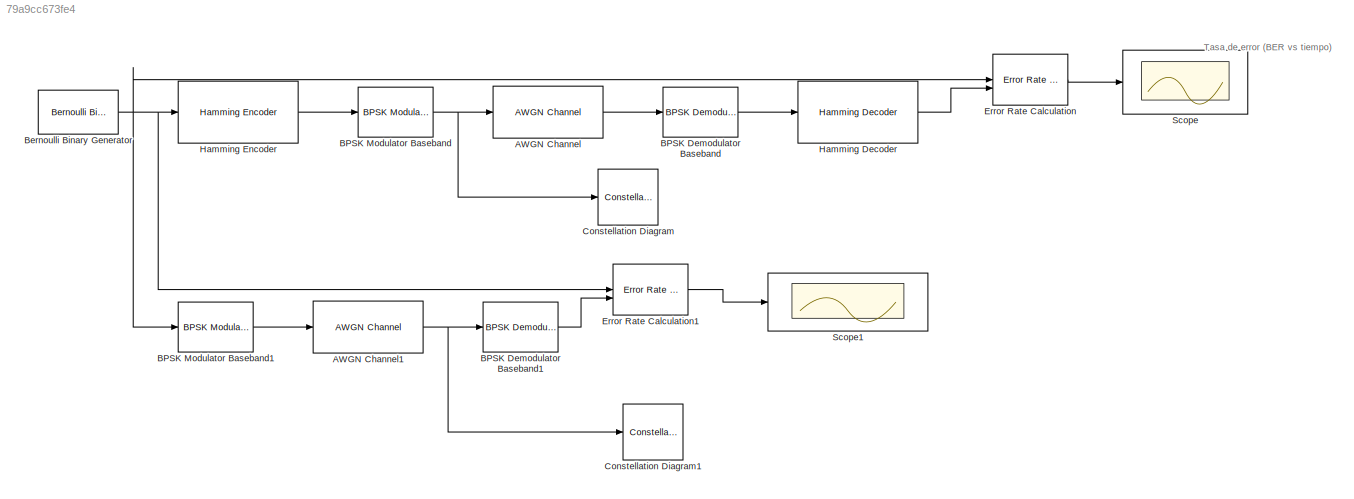
MODEL slx_79a9cc673fe4
KIND model
CONFIG AbsTol = auto
CONFIG EnableMultiTasking = off
CONFIG FixedStep = auto
CONFIG MaxStep = auto
CONFIG MinStep = auto
CONFIG RelTol = 1e-3
CONFIG SampleTimeConstraint = Unconstrained
CONFIG SolverName = VariableStepAuto
CONFIG StartTime = 0.0
CONFIG StopTime = 50
BLOCK [Reference] AWGN Channel  REF=commchan3/AWGN
Channel
  SourceBlock = commchan3/AWGN\nChannel
  SourceType = AWGN Channel
BLOCK [Reference] AWGN Channel1  REF=commchan3/AWGN
Channel
  SourceBlock = commchan3/AWGN\nChannel
  SourceType = AWGN Channel
BLOCK [Reference] BPSK Demodulator Baseband  REF=commdigbbndpm3/BPSK
Demodulator
Baseband
  SourceBlock = commdigbbndpm3/BPSK\nDemodulator\nBaseband
  SourceType = BPSK Demodulator Baseband
BLOCK [Reference] BPSK Demodulator Baseband1  REF=commdigbbndpm3/BPSK
Demodulator
Baseband
  SourceBlock = commdigbbndpm3/BPSK\nDemodulator\nBaseband
  SourceType = BPSK Demodulator Baseband
BLOCK [Reference] BPSK Modulator Baseband  REF=commdigbbndpm3/BPSK
Modulator
Baseband
  SourceBlock = commdigbbndpm3/BPSK\nModulator\nBaseband
  SourceType = BPSK Modulator Baseband
BLOCK [Reference] BPSK Modulator Baseband1  REF=commdigbbndpm3/BPSK
Modulator
Baseband
  SourceBlock = commdigbbndpm3/BPSK\nModulator\nBaseband
  SourceType = BPSK Modulator Baseband
BLOCK [Reference] Bernoulli Binary Generator  REF=commrandsrc3/Bernoulli Binary
Generator
  SourceBlock = commrandsrc3/Bernoulli Binary\nGenerator
  SourceType = Bernoulli Binary Generator
BLOCK [ConstellationDiagram] Constellation Diagram
  ContainerLayout = {"WindowBounds":[1195,1418,340,710]}
  GraphicalSettings = {"GraphicalSettings":{"Style":{}}}
  Visible = on
  WasSavedAsWebScope = on
  WindowPosition = [1195.000000,1.000000,342.000000,712.000000,]
BLOCK [ConstellationDiagram] Constellation Diagram1
  ContainerLayout = {"WindowBounds":[1,1419,1534,709]}
  GraphicalSettings = {"GraphicalSettings":{"Style":{}}}
  Visible = on
  WasSavedAsWebScope = on
BLOCK [Reference] Error Rate Calculation  REF=commsink2/Error Rate
Calculation
  SourceBlock = commsink2/Error Rate\nCalculation
  SourceType = Error Rate Calculation
BLOCK [Reference] Error Rate Calculation1  REF=commsink2/Error Rate
Calculation
  SourceBlock = commsink2/Error Rate\nCalculation
  SourceType = Error Rate Calculation
BLOCK [Reference] Hamming Decoder  REF=commblkcod2/Hamming Decoder
  SourceBlock = commblkcod2/Hamming Decoder
  SourceType = Hamming Decoder
BLOCK [Reference] Hamming Encoder  REF=commblkcod2/Hamming Encoder
  SourceBlock = commblkcod2/Hamming Encoder
  SourceType = Hamming Encoder
BLOCK [Scope] Scope
  ActiveDisplayYMaximum = 1.118628E+6
  ActiveDisplayYMinimum = -124291.99999999997
  ContainerLayout = {"WindowBounds":[1,1419,1534,709]}
  Floating = off
  GraphicalSettings = {"Style":{"BackgroundColor":[0.12941176470588237,0.12941176470588237,0.12941176470588237],"AxesColor":[0.07058823529411765,0.07058823529411765,0.07058823529411765],"LabelsColor":[0.8509803921568627,0.8509803921568627,0.8509803921568627],"PreserveColors":false,"Visible":[true,true,true],"LineStyle":["-","-","-"],"LineWidth":[1.5,1.5,1.5],"BarWidth":[0.9,0.9,0.9],"LineColor":["auto","auto","auto"],"...<+2567ch>
  MultipleDisplayCache = [{"MaxYLimMag":1.118628E+6,"MaxYLimReal":1.118628E+6,"MinYLimMag":0,"MinYLimReal":-124291.99999999997,"PlotAsMagnitudePhase":false,"ShowGrid":true,"ShowLegend":false,"Title":"%<SignalLabel>","YLabel":""}]
  NumInputPorts = 1
  Visible = on
  WasSavedAsWebScope = on
BLOCK [Scope] Scope1
  ActiveDisplayYMaximum = 1.124559E+6
  ActiveDisplayYMinimum = -124950.99999999997
  ContainerLayout = {"WindowBounds":[1195,1418,340,710]}
  DataLoggingVariableName = ScopeData1
  Floating = off
  GraphicalSettings = {"Style":{"BackgroundColor":[0.12941176470588237,0.12941176470588237,0.12941176470588237],"AxesColor":[0.07058823529411765,0.07058823529411765,0.07058823529411765],"LabelsColor":[0.8509803921568627,0.8509803921568627,0.8509803921568627],"PreserveColors":false,"Visible":[true,true,true],"LineStyle":["-","-","-"],"LineWidth":[1.5,1.5,1.5],"BarWidth":[0.9,0.9,0.9],"LineColor":["auto","auto","auto"],"...<+2292ch>
  MultipleDisplayCache = [{"MaxYLimMag":1.124559E+6,"MaxYLimReal":1.124559E+6,"MinYLimMag":0,"MinYLimReal":-124950.99999999997,"PlotAsMagnitudePhase":false,"ShowGrid":true,"ShowLegend":false,"Title":"%<SignalLabel>","YLabel":""}]
  NumInputPorts = 1
  Visible = on
  WasSavedAsWebScope = on
ANNOTATION (root): Tasa de error (BER vs tiempo)
NET AWGN Channel1:1 -> BPSK Demodulator Baseband1:1, Constellation Diagram1:1
LINE AWGN Channel:1 -> BPSK Demodulator Baseband:1
LINE BPSK Demodulator Baseband1:1 -> Error Rate Calculation1:2
LINE BPSK Demodulator Baseband:1 -> Hamming Decoder:1
LINE BPSK Modulator Baseband1:1 -> AWGN Channel1:1
NET BPSK Modulator Baseband:1 -> AWGN Channel:1, Constellation Diagram:1
NET Bernoulli Binary Generator:1 -> BPSK Modulator Baseband1:1, Error Rate Calculation1:1, Error Rate Calculation:1, Hamming Encoder:1
LINE Error Rate Calculation1:1 -> Scope1:1
LINE Error Rate Calculation:1 -> Scope:1
LINE Hamming Decoder:1 -> Error Rate Calculation:2
LINE Hamming Encoder:1 -> BPSK Modulator Baseband:1
note: NET lines group one-source signal fan-out (src -> all destinations, sorted); 1:1 wires keep LINE
